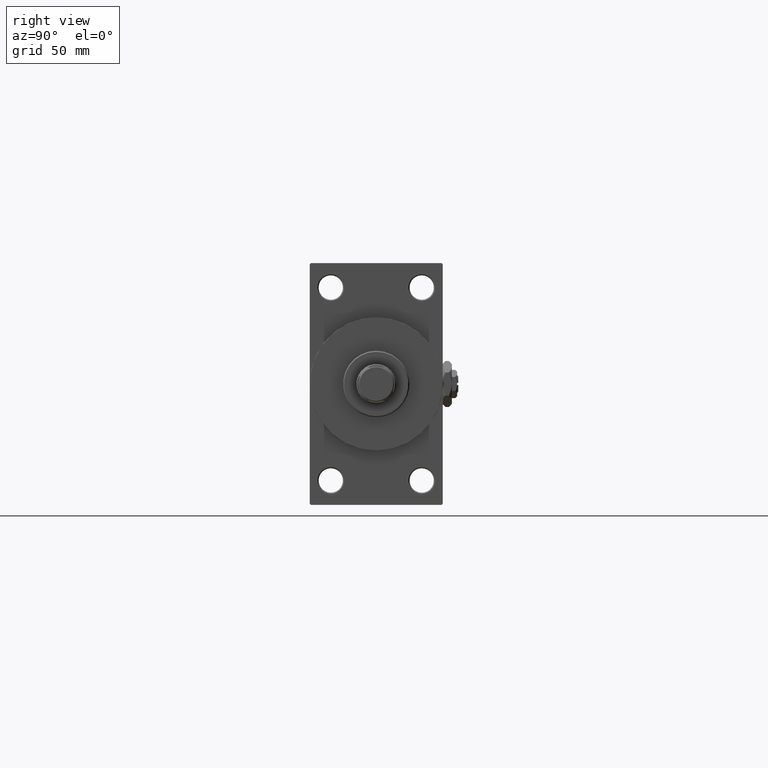
[diagram: clean part render]
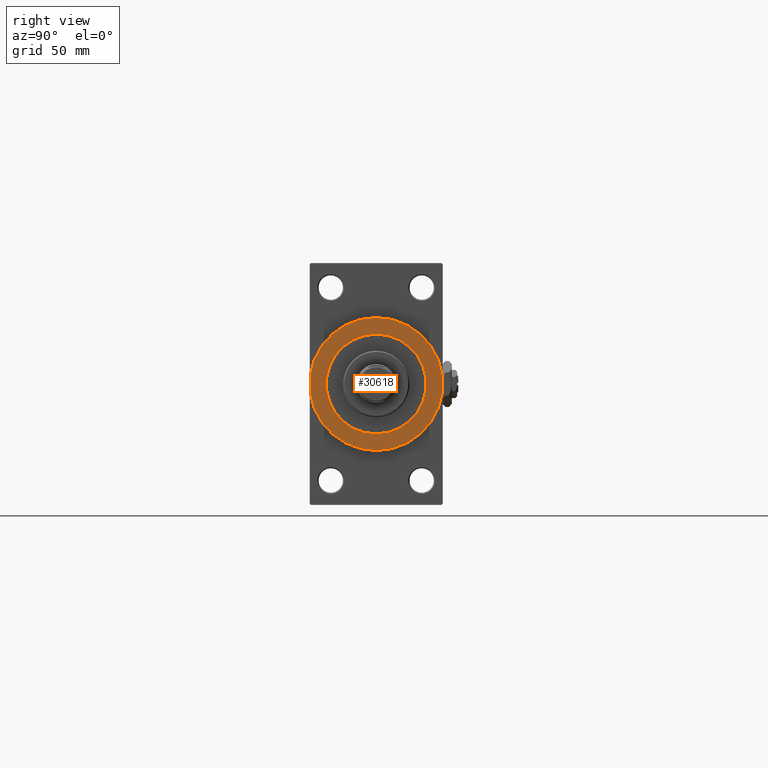
[diagram: same view with one face highlighted and labeled with its STEP entity id]
A machine part, right view. The second image highlights one B-rep face of the part: STEP entity #30618.
In plain terms, the highlighted planar face has unit normal (1, 0, 0).
Its self-contained STEP definition (entity closure, byte-faithful):
#1631 = EDGE_LOOP ( 'NONE', ( #29367, #9316 ) ) ;
#5217 = AXIS2_PLACEMENT_3D ( 'NONE', #31818, #35364, #47174 ) ;
#5417 = CARTESIAN_POINT ( 'NONE',  ( 253.0000000000000000, 0.000000000000000000, 0.000000000000000000 ) ) ;
#6089 = ORIENTED_EDGE ( 'NONE', *, *, #14029, .T. ) ;
#7672 = AXIS2_PLACEMENT_3D ( 'NONE', #11913, #38570, #43324 ) ;
#9316 = ORIENTED_EDGE ( 'NONE', *, *, #24894, .F. ) ;
#11797 = AXIS2_PLACEMENT_3D ( 'NONE', #12491, #28559, #16523 ) ;
#11913 = CARTESIAN_POINT ( 'NONE',  ( 253.0000000000000000, 0.000000000000000000, 0.000000000000000000 ) ) ;
#12491 = CARTESIAN_POINT ( 'NONE',  ( 253.0000000000000000, 0.000000000000000000, 0.000000000000000000 ) ) ;
#13477 = ORIENTED_EDGE ( 'NONE', *, *, #15463, .T. ) ;
#14029 = EDGE_CURVE ( 'NONE', #21953, #38203, #35736, .T. ) ;
#15463 = EDGE_CURVE ( 'NONE', #38203, #21953, #29335, .T. ) ;
#15747 = CARTESIAN_POINT ( 'NONE',  ( 253.0000000000000000, 2.755455298081545172E-15, 22.50000000000000355 ) ) ;
#16523 = DIRECTION ( 'NONE',  ( 0.000000000000000000, 0.000000000000000000, -1.000000000000000000 ) ) ;
#20527 = DIRECTION ( 'NONE',  ( 1.000000000000000000, 0.000000000000000000, 0.000000000000000000 ) ) ;
#21256 = FACE_BOUND ( 'NONE', #1631, .T. ) ;
#21927 = EDGE_CURVE ( 'NONE', #22949, #39196, #34258, .T. ) ;
#21953 = VERTEX_POINT ( 'NONE', #39627 ) ;
#22420 = DIRECTION ( 'NONE',  ( 1.000000000000000000, 0.000000000000000000, 0.000000000000000000 ) ) ;
#22949 = VERTEX_POINT ( 'NONE', #35149 ) ;
#24894 = EDGE_CURVE ( 'NONE', #39196, #22949, #44017, .T. ) ;
#25025 = PLANE ( 'NONE',  #49744 ) ;
#28559 = DIRECTION ( 'NONE',  ( 1.000000000000000000, 0.000000000000000000, 0.000000000000000000 ) ) ;
#29335 = CIRCLE ( 'NONE', #7672, 30.00000000000000000 ) ;
#29367 = ORIENTED_EDGE ( 'NONE', *, *, #21927, .F. ) ;
#30618 = ADVANCED_FACE ( 'NONE', ( #21256, #47178 ), #25025, .T. ) ;
#31818 = CARTESIAN_POINT ( 'NONE',  ( 253.0000000000000000, 0.000000000000000000, 0.000000000000000000 ) ) ;
#34258 = CIRCLE ( 'NONE', #11797, 22.50000000000000355 ) ;
#34885 = EDGE_LOOP ( 'NONE', ( #6089, #13477 ) ) ;
#35149 = CARTESIAN_POINT ( 'NONE',  ( 253.0000000000000000, 0.000000000000000000, -22.50000000000000355 ) ) ;
#35364 = DIRECTION ( 'NONE',  ( 1.000000000000000000, 0.000000000000000000, 0.000000000000000000 ) ) ;
#35736 = CIRCLE ( 'NONE', #5217, 30.00000000000000000 ) ;
#37755 = DIRECTION ( 'NONE',  ( 0.000000000000000000, 0.000000000000000000, -1.000000000000000000 ) ) ;
#38203 = VERTEX_POINT ( 'NONE', #45154 ) ;
#38570 = DIRECTION ( 'NONE',  ( 1.000000000000000000, 0.000000000000000000, 0.000000000000000000 ) ) ;
#39196 = VERTEX_POINT ( 'NONE', #15747 ) ;
#39613 = DIRECTION ( 'NONE',  ( 0.000000000000000000, 0.000000000000000000, -1.000000000000000000 ) ) ;
#39627 = CARTESIAN_POINT ( 'NONE',  ( 253.0000000000000000, 0.000000000000000000, 30.00000000000000000 ) ) ;
#41529 = CARTESIAN_POINT ( 'NONE',  ( 253.0000000000000000, 0.000000000000000000, 0.000000000000000000 ) ) ;
#42417 = AXIS2_PLACEMENT_3D ( 'NONE', #41529, #22420, #37755 ) ;
#43324 = DIRECTION ( 'NONE',  ( 0.000000000000000000, 0.000000000000000000, -1.000000000000000000 ) ) ;
#44017 = CIRCLE ( 'NONE', #42417, 22.50000000000000355 ) ;
#45154 = CARTESIAN_POINT ( 'NONE',  ( 253.0000000000000000, 3.673940397442059178E-15, -30.00000000000000000 ) ) ;
#47174 = DIRECTION ( 'NONE',  ( 0.000000000000000000, 0.000000000000000000, -1.000000000000000000 ) ) ;
#47178 = FACE_OUTER_BOUND ( 'NONE', #34885, .T. ) ;
#49744 = AXIS2_PLACEMENT_3D ( 'NONE', #5417, #20527, #39613 ) ;